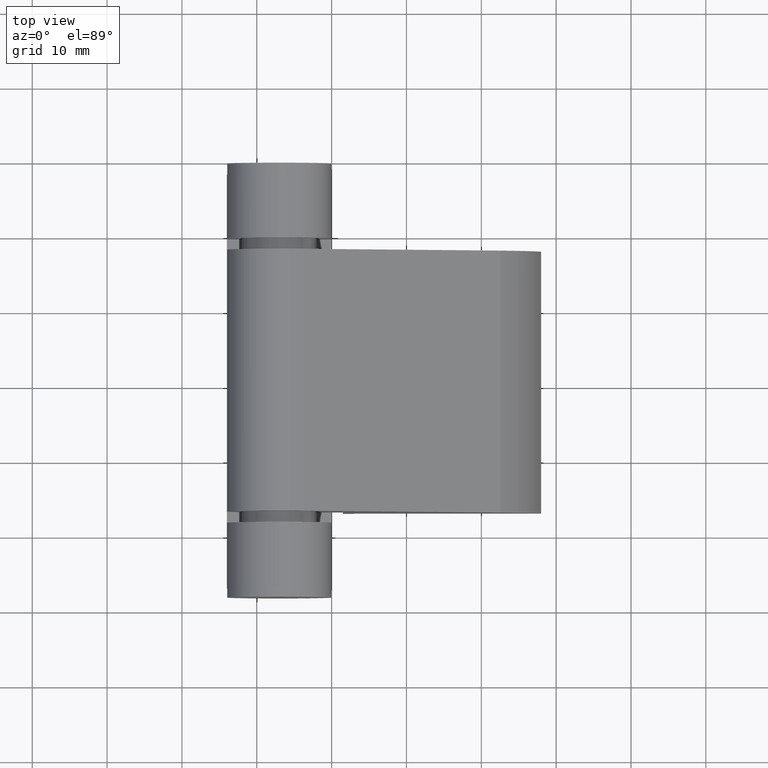
[diagram: clean part render]
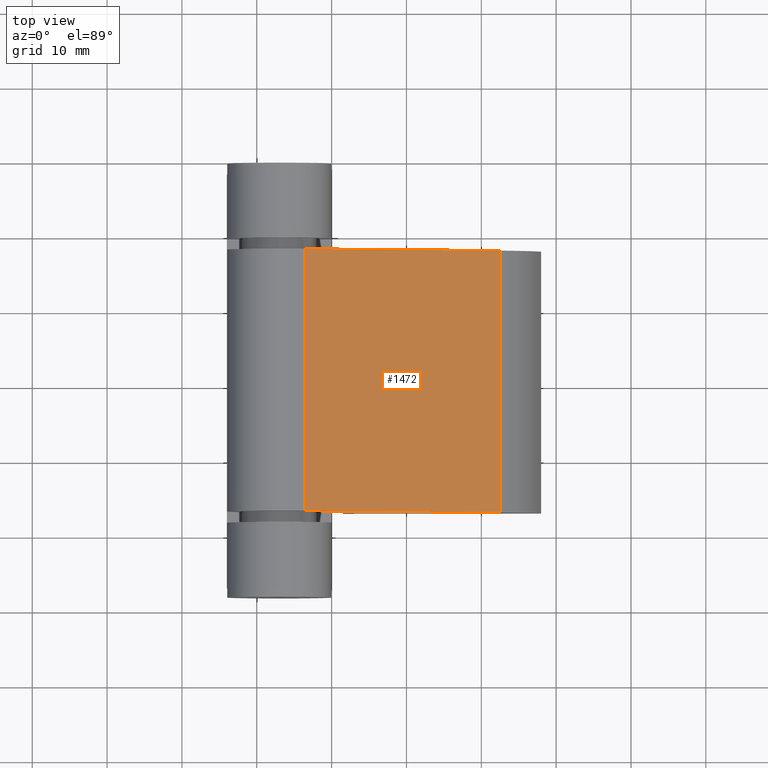
[diagram: same view with one face highlighted and labeled with its STEP entity id]
A machine part, top view. The second image highlights one B-rep face of the part: STEP entity #1472.
In plain terms, the highlighted planar face has unit normal (0.4619, 0, 0.8869).
Its self-contained STEP definition (entity closure, byte-faithful):
#1433=CARTESIAN_POINT('',(22.567507063109588,17.499999999999996,8.492642398337123));
#1434=DIRECTION('',(0.461883203528478,5.430946E-017,0.886940756927017));
#1435=DIRECTION('',(-0.886940756927017,2.828219E-017,0.461883203528478));
#1436=AXIS2_PLACEMENT_3D('',#1433,#1434,#1435);
#1437=PLANE('',#1436);
#1438=CARTESIAN_POINT('',(22.567507063109588,17.499999999999996,8.492642398337123));
#1439=VERTEX_POINT('',#1438);
#1440=CARTESIAN_POINT('',(-3.625073380421100,17.500000000000000,22.132688669128584));
#1441=VERTEX_POINT('',#1440);
#1442=CARTESIAN_POINT('',(22.567507063109588,17.499999999999996,8.492642398337123));
#1443=DIRECTION('',(-0.886940756927017,0.0,0.461883203528479));
#1444=VECTOR('',#1443,29.531375392286723);
#1445=LINE('',#1442,#1444);
#1446=EDGE_CURVE('',#1439,#1441,#1445,.T.);
#1447=ORIENTED_EDGE('',*,*,#1446,.T.);
#1448=CARTESIAN_POINT('',(-3.625073380421101,-17.500000000000000,22.132688669128584));
#1449=VERTEX_POINT('',#1448);
#1450=CARTESIAN_POINT('',(-3.625073380421100,17.500000000000000,22.132688669128584));
#1451=DIRECTION('',(0.0,-1.0,0.0));
#1452=VECTOR('',#1451,35.0);
#1453=LINE('',#1450,#1452);
#1454=EDGE_CURVE('',#1441,#1449,#1453,.T.);
#1455=ORIENTED_EDGE('',*,*,#1454,.T.);
#1456=CARTESIAN_POINT('',(22.567507063109588,-17.500000000000004,8.492642398337127));
#1457=VERTEX_POINT('',#1456);
#1458=CARTESIAN_POINT('',(22.567507063109588,-17.500000000000004,8.492642398337127));
#1459=DIRECTION('',(-0.886940756927017,0.0,0.461883203528479));
#1460=VECTOR('',#1459,29.531375392286723);
#1461=LINE('',#1458,#1460);
#1462=EDGE_CURVE('',#1457,#1449,#1461,.T.);
#1463=ORIENTED_EDGE('',*,*,#1462,.F.);
#1464=CARTESIAN_POINT('',(22.567507063109588,17.499999999999996,8.492642398337123));
#1465=DIRECTION('',(0.0,-1.0,0.0));
#1466=VECTOR('',#1465,35.0);
#1467=LINE('',#1464,#1466);
#1468=EDGE_CURVE('',#1439,#1457,#1467,.T.);
#1469=ORIENTED_EDGE('',*,*,#1468,.F.);
#1470=EDGE_LOOP('',(#1447,#1455,#1463,#1469));
#1471=FACE_OUTER_BOUND('',#1470,.T.);
#1472=ADVANCED_FACE('',(#1471),#1437,.T.);